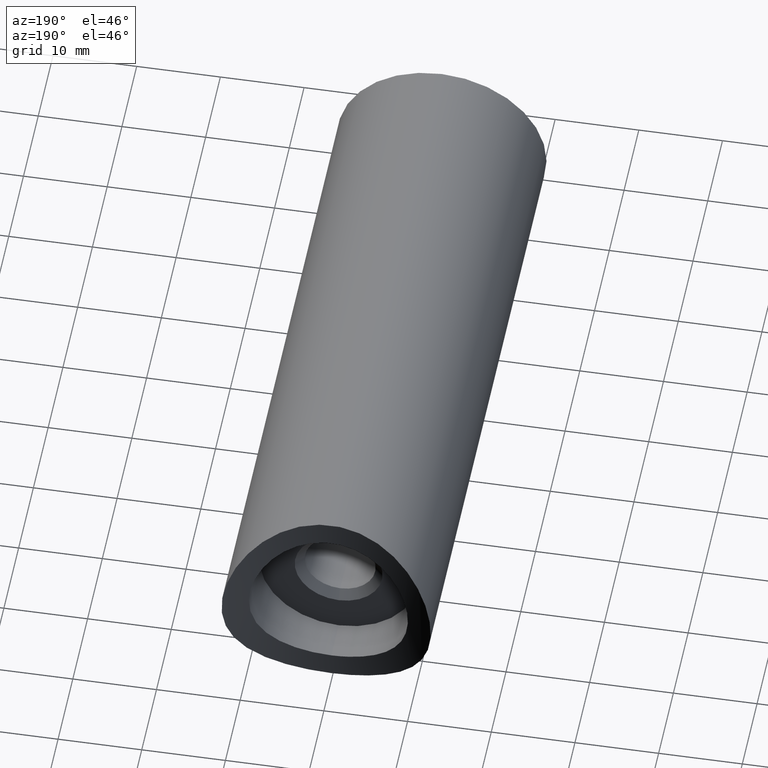
[diagram: clean part render]
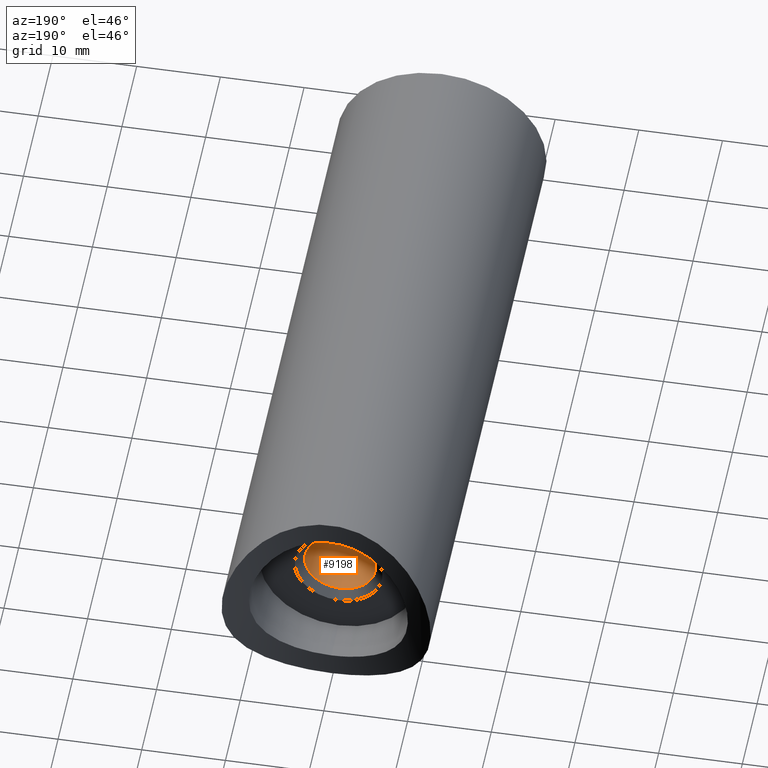
[diagram: same view with one face highlighted and labeled with its STEP entity id]
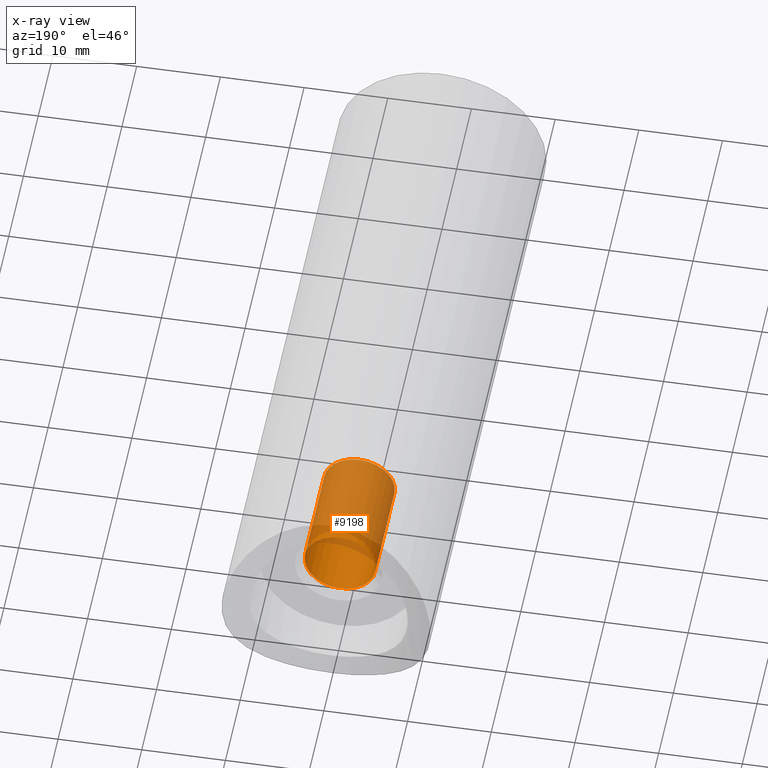
[diagram: x-ray of the same camera — body ghosted, the highlighted face saturated]
A machine part, auxiliary view. The second image highlights one B-rep face of the part: STEP entity #9198.
The next image is the same camera in x-ray: the body ghosted, the highlighted face saturated — about 67% of this face is hidden behind the body in this view.
In plain terms, the highlighted cylindrical surface (bore or boss wall) has radius 4.25 mm, axis along (-0, 1, -0).
Its self-contained STEP definition (entity closure, byte-faithful):
#168 = VERTEX_POINT ( 'NONE', #2368 ) ;
#542 = CARTESIAN_POINT ( 'NONE',  ( 0.000000000000000000, 56.00000000000002132, 0.000000000000000000 ) ) ;
#717 = DIRECTION ( 'NONE',  ( 0.000000000000000000, 0.000000000000000000, -1.000000000000000000 ) ) ;
#2233 = AXIS2_PLACEMENT_3D ( 'NONE', #7409, #4196, #717 ) ;
#2305 = DIRECTION ( 'NONE',  ( -0.000000000000000000, 1.000000000000000000, -0.000000000000000000 ) ) ;
#2368 = CARTESIAN_POINT ( 'NONE',  ( 0.000000000000000000, 56.00000000000002132, -4.249999999999988454 ) ) ;
#3395 = EDGE_LOOP ( 'NONE', ( #7715 ) ) ;
#4191 = FACE_OUTER_BOUND ( 'NONE', #10158, .T. ) ;
#4196 = DIRECTION ( 'NONE',  ( 0.000000000000000000, 1.000000000000000000, 0.000000000000000000 ) ) ;
#4663 = CARTESIAN_POINT ( 'NONE',  ( 0.000000000000000000, 70.00000000000000000, 0.000000000000000000 ) ) ;
#4709 = DIRECTION ( 'NONE',  ( 0.000000000000000000, 0.000000000000000000, 1.000000000000000000 ) ) ;
#4855 = AXIS2_PLACEMENT_3D ( 'NONE', #542, #6376, #14270 ) ;
#6376 = DIRECTION ( 'NONE',  ( 0.000000000000000000, -1.000000000000000000, 0.000000000000000000 ) ) ;
#6625 = AXIS2_PLACEMENT_3D ( 'NONE', #4663, #2305, #4709 ) ;
#6818 = CARTESIAN_POINT ( 'NONE',  ( 0.000000000000000000, 69.00000000000000000, -4.249999999999988454 ) ) ;
#6826 = VERTEX_POINT ( 'NONE', #6818 ) ;
#7409 = CARTESIAN_POINT ( 'NONE',  ( 0.000000000000000000, 69.00000000000000000, 0.000000000000000000 ) ) ;
#7715 = ORIENTED_EDGE ( 'NONE', *, *, #9882, .T. ) ;
#8039 = ORIENTED_EDGE ( 'NONE', *, *, #12986, .T. ) ;
#9198 = ADVANCED_FACE ( 'NONE', ( #9350, #4191 ), #12937, .F. ) ;
#9350 = FACE_OUTER_BOUND ( 'NONE', #3395, .T. ) ;
#9515 = CIRCLE ( 'NONE', #2233, 4.249999999999988454 ) ;
#9882 = EDGE_CURVE ( 'NONE', #6826, #6826, #9515, .T. ) ;
#10158 = EDGE_LOOP ( 'NONE', ( #8039 ) ) ;
#12937 = CYLINDRICAL_SURFACE ( 'NONE', #6625, 4.249999999999988454 ) ;
#12986 = EDGE_CURVE ( 'NONE', #168, #168, #14143, .T. ) ;
#14143 = CIRCLE ( 'NONE', #4855, 4.249999999999988454 ) ;
#14270 = DIRECTION ( 'NONE',  ( 0.000000000000000000, 0.000000000000000000, -1.000000000000000000 ) ) ;